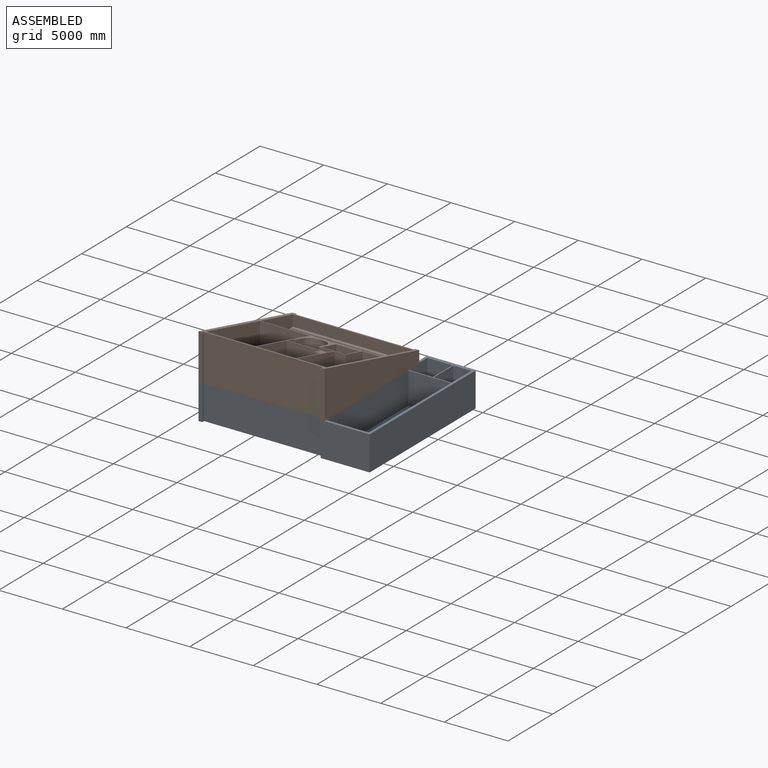
[diagram: assembled view]
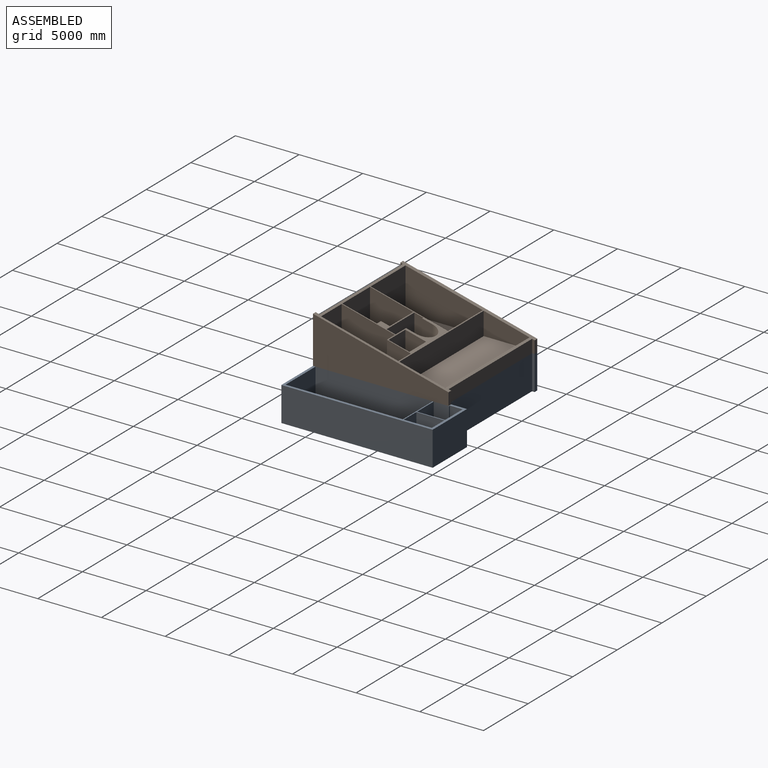
[diagram: assembled view, second angle]
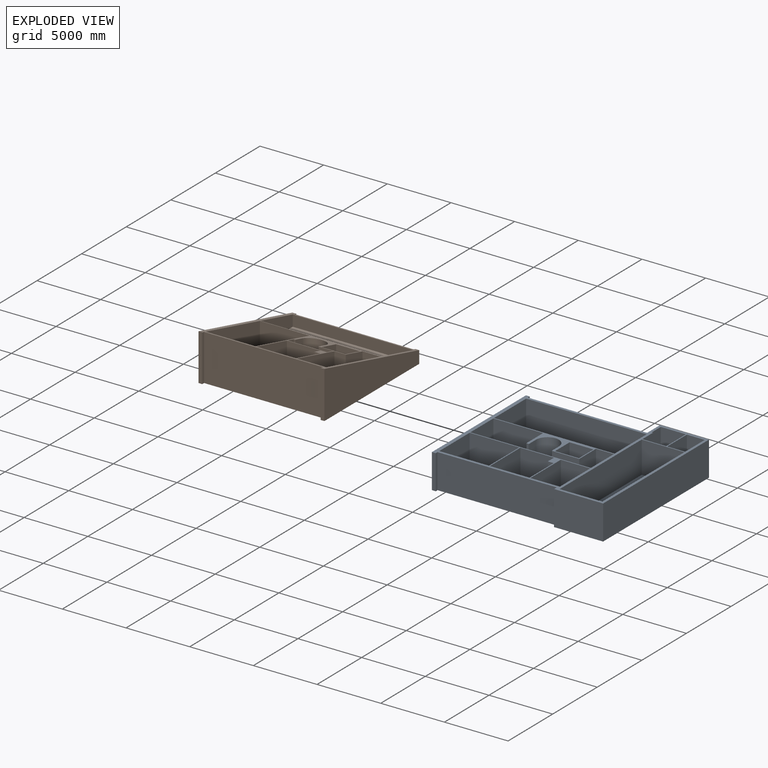
[diagram: exploded view]
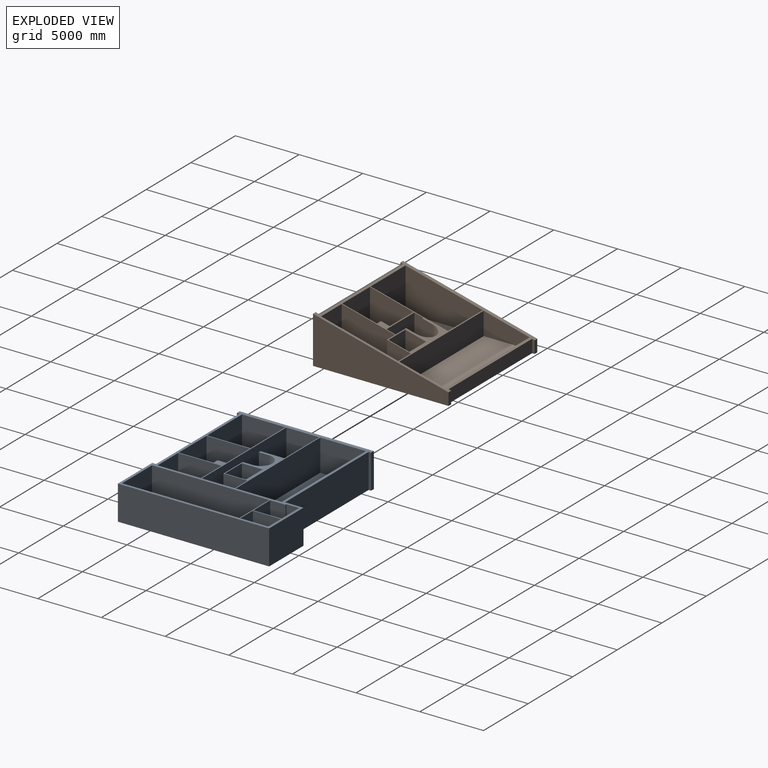
[diagram: exploded view, second angle]
ASSEMBLY  parts=2 mates=3
PART A: 71 faces, bbox 13510x11880x2700 mm
  f0: plane 2500x2200mm, normal (-1,0,0), area 5500000mm2, adj f1,f59,f60,f61
  f1: plane 2500x1870mm, normal (0,1,0), area 4675000mm2, adj f0,f2,f60,f61
  f2: plane 2500x1200mm, normal (1,0,0), area 3000000mm2, adj f1,f3,f60,f61
  f3: plane 2500x100mm, normal (0,1,0), area 250000mm2, adj f2,f4,f60,f61
  f4: plane 2500x1000mm, normal (1,0,0), area 2500000mm2, adj f3,f59,f60,f61
  f5: plane 3100x2500mm, normal (0,1,0), area 7750000mm2, adj f6,f50,f60,f69
  f6: plane 3400x2500mm, normal (1,0,0), area 8500000mm2, adj f5,f7,f60,f69
  f7: plane 2640x2500mm, normal (0,-1,0), area 6600000mm2, adj f6,f8,f60,f69
  f8: plane 2500x690mm, normal (-1,0,0), area 1725000mm2, adj f7,f9,f60,f69
  f9: plane 2500x460mm, normal (0,-1,0), area 1150000mm2, adj f8,f50,f60,f69
  f10: plane 2700x200mm, normal (1,0,0), area 540000mm2, adj f11,f51,f60,f70
  f11: plane 9360x2700mm, normal (0,-1,0), area 25272000mm2, adj f10,f12,f60,f70
  f12: plane 2700x300mm, normal (-1,0,0), area 810000mm2, adj f11,f13,f60,f70
  f13: plane 3850x2700mm, normal (0,-1,0), area 10395000mm2, adj f12,f14,f60,f70
  f14: plane 11880x2700mm, normal (1,0,0), area 32076000mm2, adj f13,f15,f60,f70
  f15: plane 3850x2700mm, normal (0,1,0), area 10395000mm2, adj f14,f16,f60,f70
  f16: plane 2700x1440mm, normal (-1,0,0), area 3888000mm2, adj f15,f17,f60,f70
  f17: plane 9360x2700mm, normal (0,1,0), area 25272000mm2, adj f16,f18,f60,f70
  f18: plane 2700x200mm, normal (1,0,0), area 540000mm2, adj f17,f19,f60,f70
  f19: plane 2700x300mm, normal (0,1,0), area 810000mm2, adj f18,f20,f60,f70
  f20: plane 10540x2700mm, normal (-1,0,0), area 28458000mm2, adj f19,f51,f60,f70
  f21: plane 2500x1880mm, normal (-1,0,0), area 4700000mm2, adj f22,f52,f60,f68
  f22: plane 2500x200mm, normal (0,-1,0), area 500000mm2, adj f21,f23,f60,f68
  f23: plane 2500x800mm, normal (1,0,0), area 2000000mm2, adj f22,f24,f60,f68
  f24: cylinder r=900mm len=2500mm, axis (0,0,-1), area 7068583.5mm2, adj f23,f25,f60,f68
  f25: plane 2500x800mm, normal (-1,0,0), area 2000000mm2, adj f24,f26,f60,f68
  f26: plane 2500x2160mm, normal (0,-1,0), area 5400000mm2, adj f25,f27,f60,f68
  f27: plane 2500x1880mm, normal (1,0,0), area 4700000mm2, adj f26,f28,f60,f68
  f28: plane 2500x1400mm, normal (0,-1,0), area 3500000mm2, adj f27,f29,f60,f68
  f29: plane 2580x2500mm, normal (-1,0,0), area 6450000mm2, adj f28,f30,f60,f68
  f30: plane 9460x2500mm, normal (0,1,0), area 23650000mm2, adj f29,f31,f60,f68
  f31: plane 2580x2500mm, normal (1,0,0), area 6450000mm2, adj f30,f52,f60,f68
  f32: plane 2500x2200mm, normal (-1,0,0), area 5500000mm2, adj f33,f53,f60,f67
  f33: plane 2500x1400mm, normal (0,1,0), area 3500000mm2, adj f32,f34,f60,f67
  f34: plane 2500x2200mm, normal (1,0,0), area 5500000mm2, adj f33,f53,f60,f67
  f35: plane 3350x2500mm, normal (0,1,0), area 8375000mm2, adj f36,f54,f60,f66
  f36: plane 9200x2500mm, normal (1,0,0), area 23000000mm2, adj f35,f37,f60,f66
  f37: plane 3350x2500mm, normal (0,-1,0), area 8375000mm2, adj f36,f54,f60,f66
  f38: plane 2500x1630mm, normal (1,0,0), area 4075000mm2, adj f39,f55,f60,f65
  f39: plane 2500x1880mm, normal (0,-1,0), area 4700000mm2, adj f38,f40,f60,f65
  f40: plane 2500x1630mm, normal (-1,0,0), area 4075000mm2, adj f39,f55,f60,f65
  f41: plane 3400x2500mm, normal (1,0,0), area 8500000mm2, adj f42,f56,f60,f64
  f42: plane 2500x2300mm, normal (0,-1,0), area 5750000mm2, adj f41,f43,f60,f64
  f43: plane 3400x2500mm, normal (-1,0,0), area 8500000mm2, adj f42,f56,f60,f64
  f44: plane 3400x2500mm, normal (1,0,0), area 8500000mm2, adj f45,f57,f60,f63
  f45: plane 3900x2500mm, normal (0,-1,0), area 9750000mm2, adj f44,f46,f60,f63
  f46: plane 3400x2500mm, normal (-1,0,0), area 8500000mm2, adj f45,f57,f60,f63
  f47: plane 3600x2500mm, normal (1,0,0), area 9000000mm2, adj f48,f58,f60,f62
  f48: plane 9460x2500mm, normal (0,-1,0), area 23650000mm2, adj f47,f49,f60,f62
  f49: plane 3600x2500mm, normal (-1,0,0), area 9000000mm2, adj f48,f58,f60,f62
  f50: plane 2710x2500mm, normal (-1,0,0), area 6775000mm2, adj f5,f9,f60,f69
  f51: plane 2700x300mm, normal (0,-1,0), area 810000mm2, adj f10,f20,f60,f70
  f52: plane 3900x2500mm, normal (0,-1,0), area 9750000mm2, adj f21,f31,f60,f68
  f53: plane 2500x1400mm, normal (0,-1,0), area 3500000mm2, adj f32,f34,f60,f67
  f54: plane 9200x2500mm, normal (-1,0,0), area 23000000mm2, adj f35,f37,f60,f66
  f55: plane 2500x1880mm, normal (0,1,0), area 4700000mm2, adj f38,f40,f60,f65
  f56: plane 2500x2300mm, normal (0,1,0), area 5750000mm2, adj f41,f43,f60,f64
  f57: plane 3900x2500mm, normal (0,1,0), area 9750000mm2, adj f44,f46,f60,f63
  f58: plane 9460x2500mm, normal (0,1,0), area 23650000mm2, adj f47,f49,f60,f62
  f59: plane 2500x1970mm, normal (0,-1,0), area 4925000mm2, adj f0,f4,f60,f61
  f60: plane 13510x11880mm, normal (0,0,1), area 17975055mm2, adj f0,f1,f2,f3,f4,f5,f6,f7
  f61: plane 2200x1970mm, normal (0,0,1), area 4214000mm2, adj f0,f1,f2,f3,f4,f59
  f62: plane 9460x3600mm, normal (0,0,1), area 34056000mm2, adj f47,f48,f49,f58
  f63: plane 3900x3400mm, normal (0,0,1), area 13260000mm2, adj f44,f45,f46,f57
  f64: plane 3400x2300mm, normal (0,0,1), area 7820000mm2, adj f41,f42,f43,f56
  f65: plane 1880x1630mm, normal (0,0,1), area 3064400mm2, adj f38,f39,f40,f55
  f66: plane 9200x3350mm, normal (0,0,1), area 30820000mm2, adj f35,f36,f37,f54
  f67: plane 2200x1400mm, normal (0,0,1), area 3080000mm2, adj f32,f33,f34,f53
  f68: plane 9460x2580mm, normal (0,0,1), area 19298345mm2, adj f21,f22,f23,f24,f25,f26,f27,f28
  f69: plane 3400x3100mm, normal (0,0,1), area 10222600mm2, adj f5,f6,f7,f8,f9,f50
  f70: plane 13510x11880mm, normal (0,0,-1), area 143810400mm2, adj f10,f11,f12,f13,f14,f15,f16,f17
PART B: 53 faces, bbox 9960x10640x3700 mm
  f0: plane 9360x1021.32mm, normal (0,1,0), area 9559515.8mm2, adj f1,f43,f48,f52
  f1: plane 1021.32x200mm, normal (1,0,0), area 199131.6mm2, adj f0,f2,f48,f52
  f2: plane 970x300mm, normal (0,1,0), area 291000mm2, adj f1,f3,f48,f52
  f3: plane 10540x3674.34mm, normal (-1,0,0), area 24475682.9mm2, adj f2,f4,f48,f52
  f4: plane 3674.34x300mm, normal (0,-1,0), area 1102302.6mm2, adj f3,f5,f48,f52
  f5: plane 3674.34x200mm, normal (1,0,0), area 729736.8mm2, adj f4,f6,f48,f52
  f6: plane 9360x3623.03mm, normal (0,-1,0), area 33911526.3mm2, adj f5,f7,f48,f52
  f7: plane 3700x300mm, normal (-1,0,0), area 1098453.9mm2, adj f6,f8,f48,f52
  f8: plane 3700x300mm, normal (0,-1,0), area 1110000mm2, adj f7,f9,f48,f52
  f9: plane 10640x3700mm, normal (1,0,0), area 24844400mm2, adj f8,f10,f48,f52
  f10: plane 970x300mm, normal (0,1,0), area 291000mm2, adj f9,f43,f48,f52
  f11: plane 1816.84x1400mm, normal (0,-1,0), area 2543578.9mm2, adj f12,f37,f51,f52
  f12: plane 6060x3371.71mm, normal (-1,0,0), area 15721314.5mm2, adj f11,f13,f51,f52
  f13: plane 3371.71x2300mm, normal (0,1,0), area 7754934.2mm2, adj f12,f14,f51,f52
  f14: plane 4180x3371.71mm, normal (1,0,0), area 11852225mm2, adj f13,f15,f51,f52
  f15: plane 2299.21x900mm, normal (0,-1,0), area 2069289.5mm2, adj f14,f37,f51,f52
  f16: plane 3100x2478.82mm, normal (0,1,0), area 7684328.9mm2, adj f17,f38,f50,f52
  f17: plane 2478.82x700mm, normal (1,0,0), area 1672309.2mm2, adj f16,f18,f50,f52
  f18: plane 2299.21x120mm, normal (0,-1,0), area 275905.3mm2, adj f17,f19,f50,f52
  f19: plane 2499.21x800mm, normal (1,0,0), area 1917263.2mm2, adj f18,f20,f48,f49,f52
  f20: cylinder r=900mm len=2293.95mm, axis (0,0,-1), area 6070325.8mm2, adj f19,f21,f48,f52
  f21: plane 2499.21x800mm, normal (-1,0,0), area 1917263.2mm2, adj f20,f22,f48,f49,f52
  f22: plane 2299.21x1180mm, normal (0,-1,0), area 2713068.4mm2, adj f21,f38,f50,f52
  f23: plane 3371.71x3100mm, normal (0,1,0), area 10452302.6mm2, adj f24,f39,f47,f52
  f24: plane 3400x3371.71mm, normal (1,0,0), area 9980789.5mm2, adj f23,f25,f47,f52
  f25: plane 2640x2499.34mm, normal (0,-1,0), area 6598263.2mm2, adj f24,f26,f47,f52
  f26: plane 2676.38x690mm, normal (-1,0,0), area 1785624.7mm2, adj f25,f27,f47,f52
  f27: plane 2676.38x460mm, normal (0,-1,0), area 1231135.5mm2, adj f26,f39,f47,f52
  f28: plane 3900x3371.71mm, normal (0,1,0), area 13149671.1mm2, adj f29,f40,f46,f52
  f29: plane 6060x3371.71mm, normal (1,0,0), area 15721314.5mm2, adj f28,f30,f46,f52
  f30: plane 3900x1816.84mm, normal (0,-1,0), area 7085684.2mm2, adj f29,f40,f46,f52
  f31: plane 2278.68x1630mm, normal (1,0,0), area 3373403mm2, adj f32,f41,f45,f52
  f32: plane 1880x1860.46mm, normal (0,-1,0), area 3497665.8mm2, adj f31,f33,f45,f52
  f33: plane 2278.68x1630mm, normal (-1,0,0), area 3373403mm2, adj f32,f41,f45,f52
  f34: plane 3600x1796.32mm, normal (1,0,0), area 4804105.3mm2, adj f35,f42,f44,f52
  f35: plane 9460x872.63mm, normal (0,-1,0), area 8255094.7mm2, adj f34,f36,f44,f52
  f36: plane 3600x1796.32mm, normal (-1,0,0), area 4804105.3mm2, adj f35,f42,f44,f52
  f37: plane 2299.21x1880mm, normal (1,0,0), area 3869089.5mm2, adj f11,f15,f51,f52
  f38: plane 2478.82x700mm, normal (-1,0,0), area 1672309.2mm2, adj f16,f22,f50,f52
  f39: plane 3371.71x2710mm, normal (-1,0,0), area 8195164.8mm2, adj f23,f27,f47,f52
  f40: plane 6060x3371.71mm, normal (-1,0,0), area 15721314.5mm2, adj f28,f30,f46,f52
  f41: plane 2278.68x1880mm, normal (0,1,0), area 4283926.3mm2, adj f31,f33,f45,f52
  f42: plane 9460x1796.32mm, normal (0,1,0), area 16993147.4mm2, adj f34,f36,f44,f52
  f43: plane 1021.32x200mm, normal (-1,0,0), area 199131.6mm2, adj f0,f10,f48,f52
  f44: plane 9460x3600mm, normal (0,0,1), area 34056000mm2, adj f34,f35,f36,f42
  f45: plane 1880x1630mm, normal (0,0,1), area 3064400mm2, adj f31,f32,f33,f41
  f46: plane 6060x3900mm, normal (0,0,1), area 23634000mm2, adj f28,f29,f30,f40
  f47: plane 3400x3100mm, normal (0,0,1), area 10222600mm2, adj f23,f24,f25,f26,f27,f39
  f48: plane 10640x9960mm, normal (0,0,-1), area 98552055mm2, adj f0,f1,f2,f3,f4,f5,f6,f7
  f49: plane 1800x200mm, normal (0,1,0), area 360000mm2, adj f19,f21,f48,f50
  f50: plane 3100x700mm, normal (0,0,1), area 2170000mm2, adj f16,f17,f18,f22,f38,f49
  f51: plane 6060x2300mm, normal (0,0,1), area 12246000mm2, adj f11,f12,f13,f14,f15,f37
  f52: plane 10640x9960mm, normal (0,0.25,0.97), area 13585300mm2, adj f0,f1,f2,f3,f4,f5,f6,f7
PLACE A t=(-3584.52,13096.52,834.62)mm
PLACE B t=(-3584.52,13096.52,3534.62)mm
MATE planar B.f3 <-> A.f20  axis (-1,0,0) through (-3884.52,7203.64,4626.93)mm
MATE planar A.f17 <-> B.f0  axis (0,1,0) through (1095.48,13296.52,1984.62)mm
MATE planar B.f48 <-> A.f60  axis (0,0,-1) through (1088.14,8222.79,3334.62)mm
